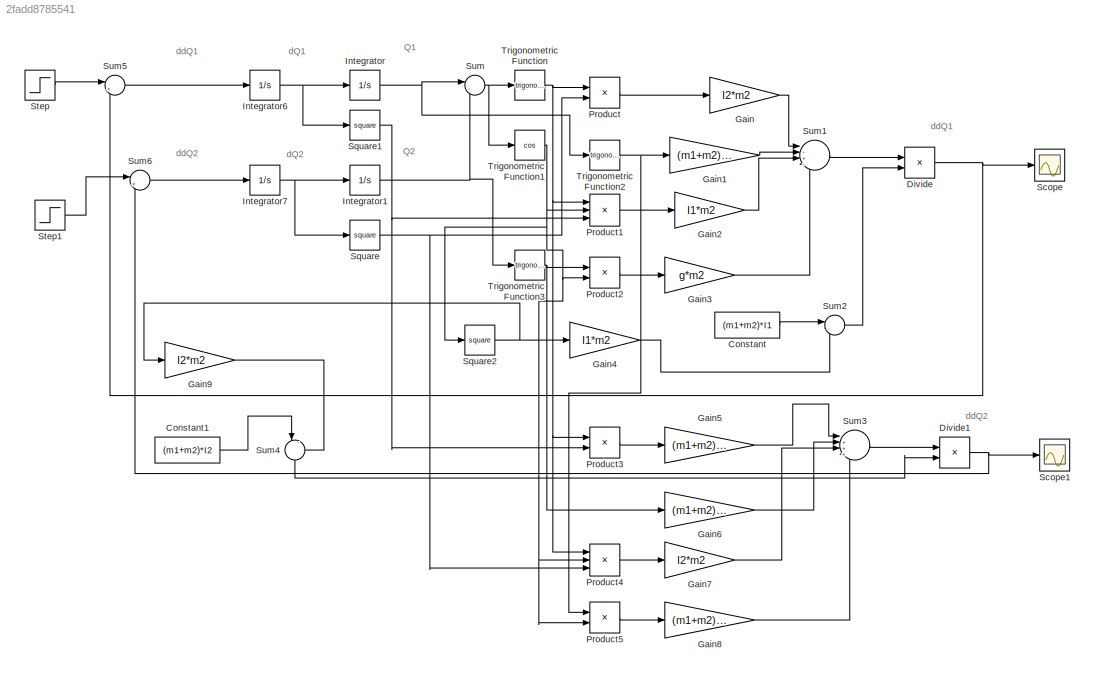
MODEL slx_2fadd8785541
KIND model
CONFIG AbsTol = auto
CONFIG EnableMultiTasking = off
CONFIG FixedStep = auto
CONFIG InitFcn = m1=0.2;\nI1=0.3;\nm2=0.1;\nI2=0.25;\ng=9.81;
CONFIG MaxStep = auto
CONFIG MinStep = auto
CONFIG RelTol = 1e-3
CONFIG SampleTimeConstraint = Unconstrained
CONFIG SolverName = VariableStepAuto
CONFIG StartTime = 0.0
CONFIG StopTime = 10
BLOCK [Constant] Constant
  Value = (m1+m2)*I1
BLOCK [Constant] Constant1
  Value = (m1+m2)*I2
BLOCK [Product] Divide
  Inputs = */
BLOCK [Product] Divide1
  Inputs = */
BLOCK [Gain] Gain
  Gain = I2*m2
BLOCK [Gain] Gain1
  Gain = (m1+m2)*g
BLOCK [Gain] Gain2
  Gain = I1*m2
BLOCK [Gain] Gain3
  Gain = g*m2
BLOCK [Gain] Gain4
  Gain = I1*m2
BLOCK [Gain] Gain5
  Gain = (m1+m2)*I1
BLOCK [Gain] Gain6
  Gain = (m1+m2)*g
BLOCK [Gain] Gain7
  Gain = I2*m2
BLOCK [Gain] Gain8
  Gain = (m1+m2)*g
BLOCK [Gain] Gain9
  Gain = I2*m2
BLOCK [Integrator] Integrator
BLOCK [Integrator] Integrator1
  InitialCondition = (35*pi)/180
BLOCK [Integrator] Integrator6
BLOCK [Integrator] Integrator7
BLOCK [Product] Product
BLOCK [Product] Product1
  Inputs = 3
BLOCK [Product] Product2
BLOCK [Product] Product3
BLOCK [Product] Product4
  Inputs = 3
BLOCK [Product] Product5
BLOCK [Scope] Scope
  Floating = off
  NumInputPorts = 1
  ScopeSpecificationString = Simulink.scopes.TimeScopeBlockCfg('CurrentConfiguration', extmgr.ConfigurationSet(extmgr.Configuration('Core','General UI',true),extmgr.Configuration('Core','Source UI',true),extmgr.Configuration('Sources','WiredSimulink',true),extmgr.Configuration('Visuals','Time Domain',true,'SerializedDisplays',{struct('MinYLimReal','-18.83859','MaxYLimReal','18.87697','YLabelReal','','MinYLimMag','0.00000','Ma...<+1452ch>
BLOCK [Scope] Scope1
  Floating = off
  NumInputPorts = 1
  ScopeSpecificationString = Simulink.scopes.TimeScopeBlockCfg('CurrentConfiguration', extmgr.ConfigurationSet(extmgr.Configuration('Core','General UI',true),extmgr.Configuration('Core','Source UI',true),extmgr.Configuration('Sources','WiredSimulink',true,'DataLoggingVariableName','ScopeData1'),extmgr.Configuration('Visuals','Time Domain',true,'SerializedDisplays',{struct('MinYLimReal','-36.17723','MaxYLimReal','35.67787','YL...<+1493ch>
BLOCK [Math] Square
  Operator = square
BLOCK [Math] Square1
  Operator = square
BLOCK [Math] Square2
  Operator = square
BLOCK [Step] Step
  After = 0
  SampleTime = 0
  Time = 0
BLOCK [Step] Step1
  After = 0
  SampleTime = 0
  Time = 0
BLOCK [Sum] Sum
  Inputs = |-+
BLOCK [Sum] Sum1
  Inputs = |-+--
BLOCK [Sum] Sum2
  Inputs = |-+
BLOCK [Sum] Sum3
  Inputs = |+++-
BLOCK [Sum] Sum4
  Inputs = |-+
  NameLocation = left
BLOCK [Sum] Sum5
  Inputs = |++
BLOCK [Sum] Sum6
  Inputs = |++
BLOCK [Trigonometry] Trigonometric Function
BLOCK [Trigonometry] Trigonometric Function1
  Operator = cos
BLOCK [Trigonometry] Trigonometric Function2
BLOCK [Trigonometry] Trigonometric Function3
ANNOTATION (root): Q1
ANNOTATION (root): Q2
ANNOTATION (root): dQ1
ANNOTATION (root): dQ2
ANNOTATION (root): ddQ1
ANNOTATION (root): ddQ2
LINE Constant1:1 -> Sum4:1
LINE Constant:1 -> Sum2:1
NET Divide1:1 -> Scope1:1, Sum6:2
NET Divide:1 -> Scope:1, Sum5:2
LINE Gain1:1 -> Sum1:2
LINE Gain2:1 -> Sum1:3
LINE Gain3:1 -> Sum1:4
LINE Gain4:1 -> Sum2:2
LINE Gain5:1 -> Sum3:1
LINE Gain6:1 -> Sum3:2
LINE Gain7:1 -> Sum3:3
LINE Gain8:1 -> Sum3:4
LINE Gain9:1 -> Sum4:2
LINE Gain:1 -> Sum1:1
NET Integrator1:1 -> Sum:2, Trigonometric Function3:1
NET Integrator6:1 -> Integrator:1, Square1:1
NET Integrator7:1 -> Integrator1:1, Square:1
NET Integrator:1 -> Sum:1, Trigonometric Function2:1
LINE Product1:1 -> Gain2:1
LINE Product2:1 -> Gain3:1
LINE Product3:1 -> Gain5:1
LINE Product4:1 -> Gain7:1
LINE Product5:1 -> Gain8:1
LINE Product:1 -> Gain:1
NET Square1:1 -> Product1:3, Product3:2
NET Square2:1 -> Gain4:1, Gain9:1
NET Square:1 -> Product4:3, Product:2
LINE Step1:1 -> Sum6:1
LINE Step:1 -> Sum5:1
LINE Sum1:1 -> Divide:1
LINE Sum2:1 -> Divide:2
LINE Sum3:1 -> Divide1:1
LINE Sum4:1 -> Divide1:2
LINE Sum5:1 -> Integrator6:1
LINE Sum6:1 -> Integrator7:1
NET Sum:1 -> Trigonometric Function1:1, Trigonometric Function:1
NET Trigonometric Function1:1 -> Product1:2, Product2:2, Product4:2, Product5:2, Square2:1
NET Trigonometric Function2:1 -> Gain1:1, Product5:1
NET Trigonometric Function3:1 -> Gain6:1, Product2:1
NET Trigonometric Function:1 -> Product1:1, Product3:1, Product4:1, Product:1
note: NET lines group one-source signal fan-out (src -> all destinations, sorted); 1:1 wires keep LINE
